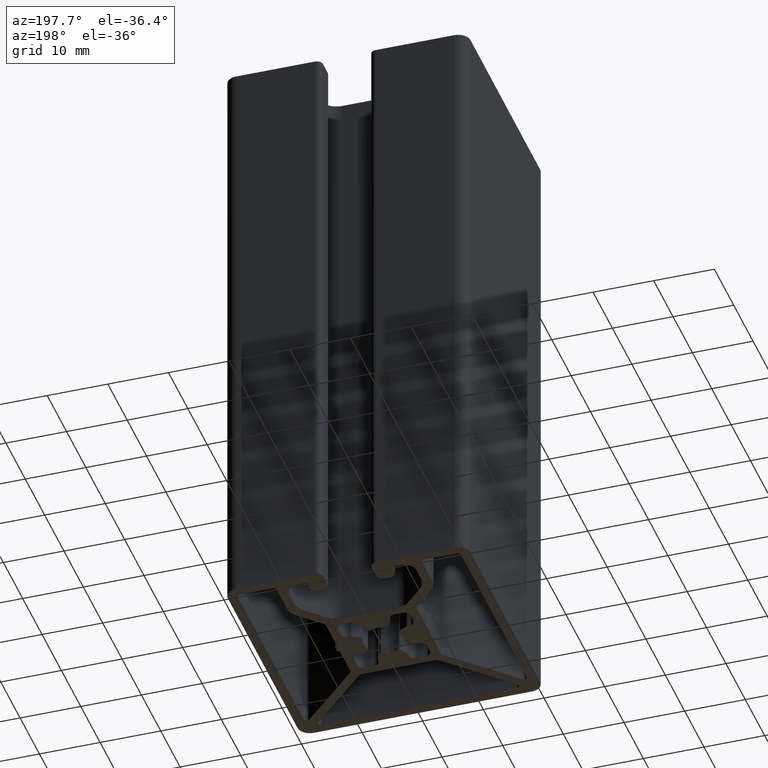
[diagram: clean part render]
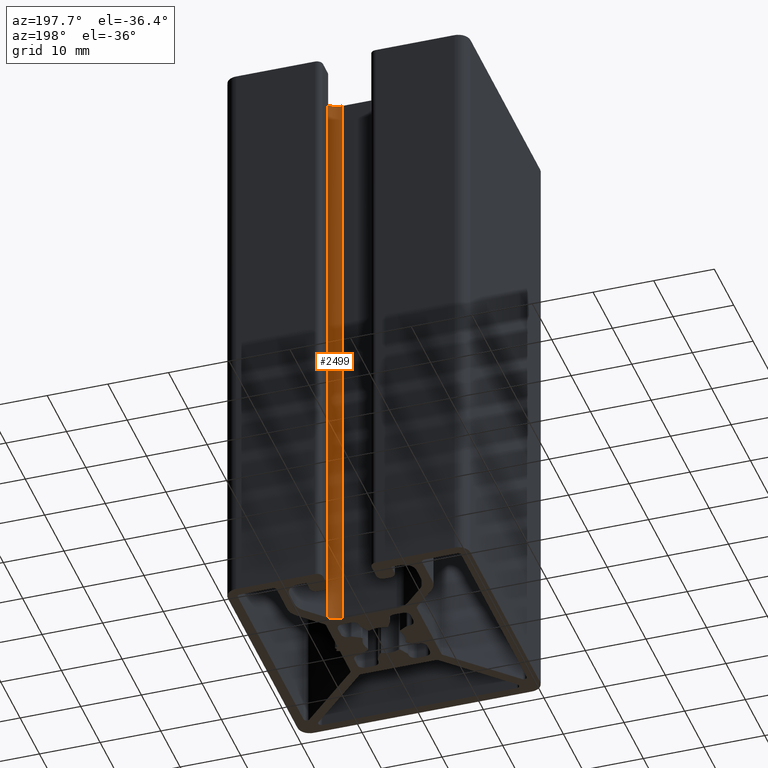
[diagram: same view with one face highlighted and labeled with its STEP entity id]
A machine part, auxiliary view. The second image highlights one B-rep face of the part: STEP entity #2499.
In plain terms, the highlighted cylindrical surface (edge-blend (fillet) strip) has radius 3 mm, axis along (0, 0, 1).
Its self-contained STEP definition (entity closure, byte-faithful):
#37=CIRCLE('',#2647,3.);
#38=CIRCLE('',#2648,3.);
#162=CYLINDRICAL_SURFACE('',#2646,3.);
#235=FACE_OUTER_BOUND('',#366,.T.);
#366=EDGE_LOOP('',(#1702,#1703,#1704,#1705));
#519=LINE('',#3751,#774);
#520=LINE('',#3757,#775);
#774=VECTOR('',#2967,100.);
#775=VECTOR('',#2974,100.);
#1029=VERTEX_POINT('',#3747);
#1030=VERTEX_POINT('',#3749);
#1031=VERTEX_POINT('',#3753);
#1032=VERTEX_POINT('',#3755);
#1301=EDGE_CURVE('',#1030,#1029,#519,.T.);
#1302=EDGE_CURVE('',#1029,#1031,#37,.T.);
#1303=EDGE_CURVE('',#1032,#1030,#38,.T.);
#1304=EDGE_CURVE('',#1032,#1031,#520,.T.);
#1702=ORIENTED_EDGE('',*,*,#1302,.F.);
#1703=ORIENTED_EDGE('',*,*,#1301,.F.);
#1704=ORIENTED_EDGE('',*,*,#1303,.F.);
#1705=ORIENTED_EDGE('',*,*,#1304,.T.);
#2499=ADVANCED_FACE('',(#235),#162,.F.);
#2646=AXIS2_PLACEMENT_3D('',#3752,#2968,#2969);
#2647=AXIS2_PLACEMENT_3D('',#3754,#2970,#2971);
#2648=AXIS2_PLACEMENT_3D('',#3756,#2972,#2973);
#2967=DIRECTION('',(0.,0.,1.));
#2968=DIRECTION('center_axis',(0.,0.,1.));
#2969=DIRECTION('ref_axis',(-7.40148683083438E-16,-1.,0.));
#2970=DIRECTION('center_axis',(0.,0.,-1.));
#2971=DIRECTION('ref_axis',(-7.40148683083438E-16,-1.,0.));
#2972=DIRECTION('center_axis',(0.,0.,1.));
#2973=DIRECTION('ref_axis',(-7.40148683083438E-16,-1.,0.));
#2974=DIRECTION('',(0.,0.,1.));
#3747=CARTESIAN_POINT('',(6.61091970347398,8.37868565644032,100.));
#3749=CARTESIAN_POINT('',(6.61091970347398,8.37868565644032,0.));
#3751=CARTESIAN_POINT('',(6.61091970347398,8.37868565644032,0.));
#3752=CARTESIAN_POINT('Origin',(4.48959935991435,10.500006,0.));
#3753=CARTESIAN_POINT('',(4.48959935991435,7.50000599999997,100.));
#3754=CARTESIAN_POINT('Origin',(4.48959935991435,10.500006,100.));
#3755=CARTESIAN_POINT('',(4.48959935991435,7.50000599999997,0.));
#3756=CARTESIAN_POINT('Origin',(4.48959935991435,10.500006,0.));
#3757=CARTESIAN_POINT('',(4.48959935991435,7.50000599999997,0.));